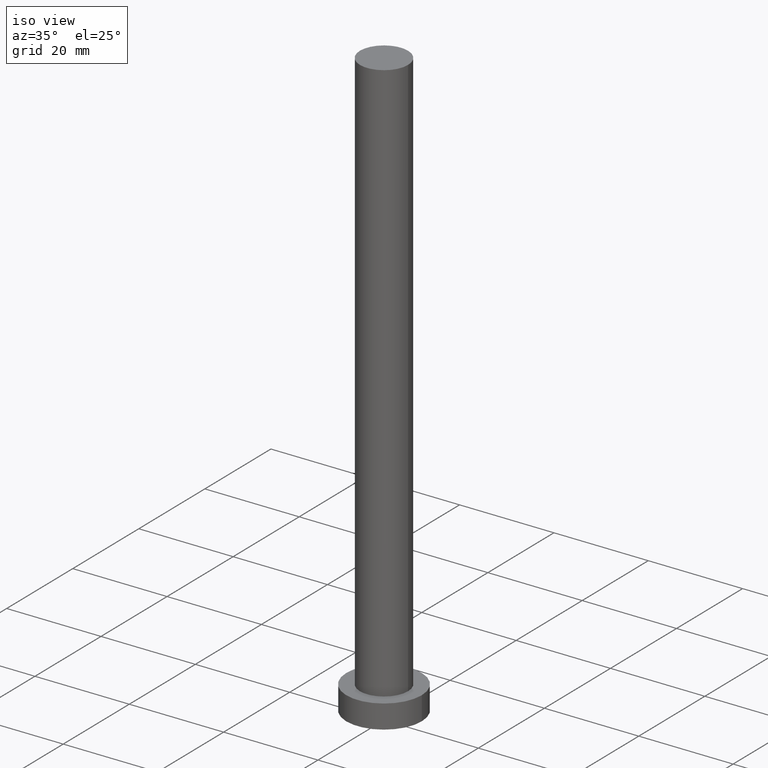
[diagram: clean part render]
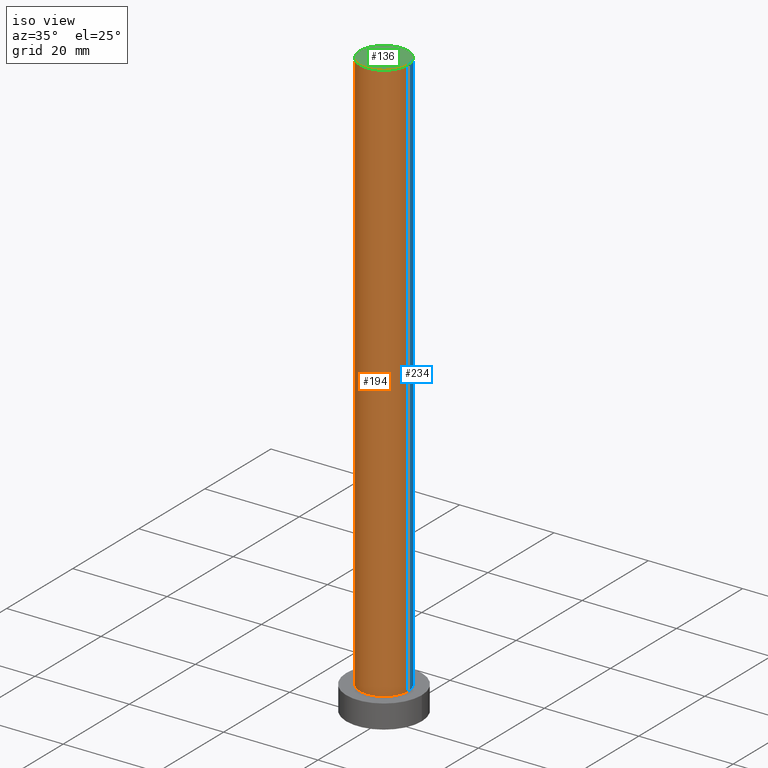
[diagram: same view with three faces highlighted in distinct colors, each labeled with its STEP entity id]
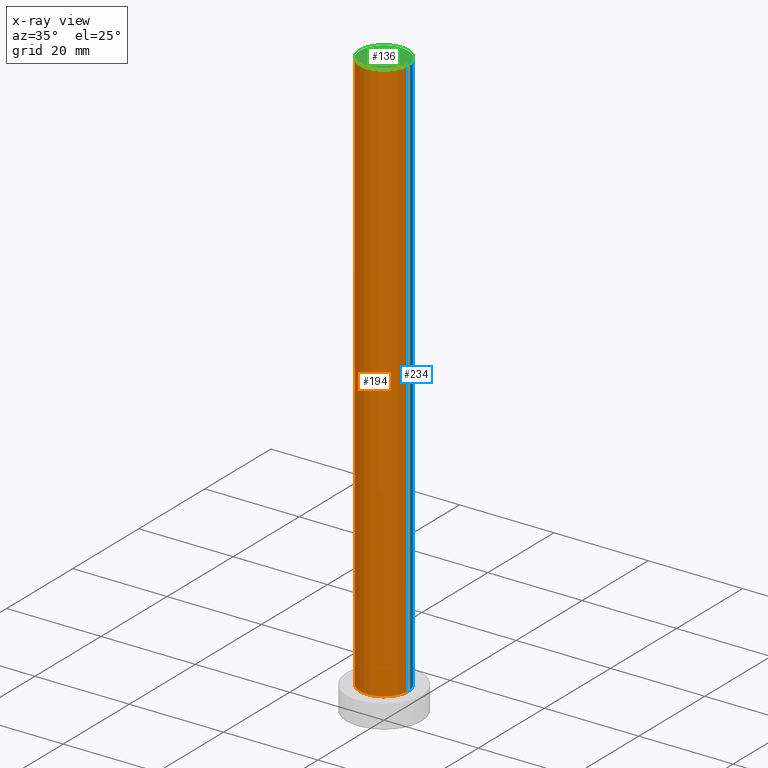
[diagram: x-ray of the same camera — body ghosted, the three highlighted faces saturated]
A machine part, iso view with three faces highlighted in distinct colors.
The next image is the same camera in x-ray (body ghosted, the three faces saturated) — at least one of them is partly hidden behind the body in this view.
Their STEP definitions:

[orange] entity #194 — the highlighted cylindrical surface (edge-blend (fillet) strip) has radius 5.1 mm, axis along (-0, -0, -1).
#2 = DIRECTION ( 'NONE',  ( -1.000000000000000000, 0.000000000000000000, 0.000000000000000000 ) ) ;
#4 = DIRECTION ( 'NONE',  ( 1.000000000000000000, 0.000000000000000000, 0.000000000000000000 ) ) ;
#12 = ORIENTED_EDGE ( 'NONE', *, *, #64, .T. ) ;
#19 = DIRECTION ( 'NONE',  ( 1.000000000000000000, 0.000000000000000000, 0.000000000000000000 ) ) ;
#20 = DIRECTION ( 'NONE',  ( -0.000000000000000000, -0.000000000000000000, -1.000000000000000000 ) ) ;
#23 = CARTESIAN_POINT ( 'NONE',  ( -5.100000000000001421, 0.000000000000000000, 125.0000000000000000 ) ) ;
#25 = EDGE_CURVE ( 'NONE', #35, #249, #198, .T. ) ;
#33 = ORIENTED_EDGE ( 'NONE', *, *, #25, .T. ) ;
#35 = VERTEX_POINT ( 'NONE', #81 ) ;
#49 = AXIS2_PLACEMENT_3D ( 'NONE', #99, #179, #2 ) ;
#64 = EDGE_CURVE ( 'NONE', #249, #190, #83, .T. ) ;
#76 = CARTESIAN_POINT ( 'NONE',  ( 0.000000000000000000, 0.000000000000000000, 125.0000000000000000 ) ) ;
#81 = CARTESIAN_POINT ( 'NONE',  ( -5.100000000000001421, 0.000000000000000000, 125.0000000000000000 ) ) ;
#83 = CIRCLE ( 'NONE', #199, 5.100000000000001421 ) ;
#95 = EDGE_LOOP ( 'NONE', ( #219, #213, #33, #12 ) ) ;
#99 = CARTESIAN_POINT ( 'NONE',  ( 0.000000000000000000, 0.000000000000000000, 125.0000000000000000 ) ) ;
#102 = CARTESIAN_POINT ( 'NONE',  ( -5.100000000000001421, 0.000000000000000000, 5.000000000000000000 ) ) ;
#104 = CIRCLE ( 'NONE', #248, 5.100000000000001421 ) ;
#120 = CARTESIAN_POINT ( 'NONE',  ( 5.100000000000001421, 6.245698675651502811E-16, 5.000000000000000000 ) ) ;
#121 = EDGE_CURVE ( 'NONE', #149, #190, #140, .T. ) ;
#128 = EDGE_CURVE ( 'NONE', #35, #149, #104, .T. ) ;
#134 = DIRECTION ( 'NONE',  ( 0.000000000000000000, 0.000000000000000000, 1.000000000000000000 ) ) ;
#140 = LINE ( 'NONE', #240, #221 ) ;
#149 = VERTEX_POINT ( 'NONE', #177 ) ;
#177 = CARTESIAN_POINT ( 'NONE',  ( 5.100000000000001421, 6.245698675651502811E-16, 125.0000000000000000 ) ) ;
#179 = DIRECTION ( 'NONE',  ( -0.000000000000000000, -0.000000000000000000, -1.000000000000000000 ) ) ;
#180 = DIRECTION ( 'NONE',  ( 0.000000000000000000, 0.000000000000000000, 1.000000000000000000 ) ) ;
#190 = VERTEX_POINT ( 'NONE', #120 ) ;
#194 = ADVANCED_FACE ( 'NONE', ( #224 ), #204, .T. ) ;
#198 = LINE ( 'NONE', #23, #205 ) ;
#199 = AXIS2_PLACEMENT_3D ( 'NONE', #237, #180, #4 ) ;
#204 = CYLINDRICAL_SURFACE ( 'NONE', #49, 5.100000000000001421 ) ;
#205 = VECTOR ( 'NONE', #20, 1000.000000000000000 ) ;
#213 = ORIENTED_EDGE ( 'NONE', *, *, #128, .F. ) ;
#219 = ORIENTED_EDGE ( 'NONE', *, *, #121, .F. ) ;
#221 = VECTOR ( 'NONE', #225, 1000.000000000000000 ) ;
#224 = FACE_OUTER_BOUND ( 'NONE', #95, .T. ) ;
#225 = DIRECTION ( 'NONE',  ( -0.000000000000000000, -0.000000000000000000, -1.000000000000000000 ) ) ;
#237 = CARTESIAN_POINT ( 'NONE',  ( 0.000000000000000000, 0.000000000000000000, 5.000000000000000000 ) ) ;
#240 = CARTESIAN_POINT ( 'NONE',  ( 5.100000000000001421, 6.245698675651502811E-16, 125.0000000000000000 ) ) ;
#248 = AXIS2_PLACEMENT_3D ( 'NONE', #76, #134, #19 ) ;
#249 = VERTEX_POINT ( 'NONE', #102 ) ;

[blue] entity #234 — the highlighted cylindrical surface (edge-blend (fillet) strip) has radius 5.1 mm, axis along (-0, -0, -1).
#17 = AXIS2_PLACEMENT_3D ( 'NONE', #154, #122, #236 ) ;
#20 = DIRECTION ( 'NONE',  ( -0.000000000000000000, -0.000000000000000000, -1.000000000000000000 ) ) ;
#23 = CARTESIAN_POINT ( 'NONE',  ( -5.100000000000001421, 0.000000000000000000, 125.0000000000000000 ) ) ;
#25 = EDGE_CURVE ( 'NONE', #35, #249, #198, .T. ) ;
#31 = CIRCLE ( 'NONE', #61, 5.100000000000001421 ) ;
#35 = VERTEX_POINT ( 'NONE', #81 ) ;
#43 = EDGE_CURVE ( 'NONE', #190, #249, #31, .T. ) ;
#46 = AXIS2_PLACEMENT_3D ( 'NONE', #142, #160, #226 ) ;
#50 = ORIENTED_EDGE ( 'NONE', *, *, #71, .F. ) ;
#61 = AXIS2_PLACEMENT_3D ( 'NONE', #98, #152, #239 ) ;
#71 = EDGE_CURVE ( 'NONE', #149, #35, #238, .T. ) ;
#81 = CARTESIAN_POINT ( 'NONE',  ( -5.100000000000001421, 0.000000000000000000, 125.0000000000000000 ) ) ;
#98 = CARTESIAN_POINT ( 'NONE',  ( 0.000000000000000000, 0.000000000000000000, 5.000000000000000000 ) ) ;
#102 = CARTESIAN_POINT ( 'NONE',  ( -5.100000000000001421, 0.000000000000000000, 5.000000000000000000 ) ) ;
#113 = ORIENTED_EDGE ( 'NONE', *, *, #25, .F. ) ;
#120 = CARTESIAN_POINT ( 'NONE',  ( 5.100000000000001421, 6.245698675651502811E-16, 5.000000000000000000 ) ) ;
#121 = EDGE_CURVE ( 'NONE', #149, #190, #140, .T. ) ;
#122 = DIRECTION ( 'NONE',  ( 0.000000000000000000, 0.000000000000000000, 1.000000000000000000 ) ) ;
#131 = ORIENTED_EDGE ( 'NONE', *, *, #121, .T. ) ;
#140 = LINE ( 'NONE', #240, #221 ) ;
#142 = CARTESIAN_POINT ( 'NONE',  ( 0.000000000000000000, 0.000000000000000000, 125.0000000000000000 ) ) ;
#143 = FACE_OUTER_BOUND ( 'NONE', #171, .T. ) ;
#148 = ORIENTED_EDGE ( 'NONE', *, *, #43, .T. ) ;
#149 = VERTEX_POINT ( 'NONE', #177 ) ;
#152 = DIRECTION ( 'NONE',  ( 0.000000000000000000, 0.000000000000000000, 1.000000000000000000 ) ) ;
#154 = CARTESIAN_POINT ( 'NONE',  ( 0.000000000000000000, 0.000000000000000000, 125.0000000000000000 ) ) ;
#160 = DIRECTION ( 'NONE',  ( -0.000000000000000000, -0.000000000000000000, -1.000000000000000000 ) ) ;
#171 = EDGE_LOOP ( 'NONE', ( #50, #131, #148, #113 ) ) ;
#177 = CARTESIAN_POINT ( 'NONE',  ( 5.100000000000001421, 6.245698675651502811E-16, 125.0000000000000000 ) ) ;
#182 = CYLINDRICAL_SURFACE ( 'NONE', #46, 5.100000000000001421 ) ;
#190 = VERTEX_POINT ( 'NONE', #120 ) ;
#198 = LINE ( 'NONE', #23, #205 ) ;
#205 = VECTOR ( 'NONE', #20, 1000.000000000000000 ) ;
#221 = VECTOR ( 'NONE', #225, 1000.000000000000000 ) ;
#225 = DIRECTION ( 'NONE',  ( -0.000000000000000000, -0.000000000000000000, -1.000000000000000000 ) ) ;
#226 = DIRECTION ( 'NONE',  ( -1.000000000000000000, 0.000000000000000000, 0.000000000000000000 ) ) ;
#234 = ADVANCED_FACE ( 'NONE', ( #143 ), #182, .T. ) ;
#236 = DIRECTION ( 'NONE',  ( 1.000000000000000000, 0.000000000000000000, 0.000000000000000000 ) ) ;
#238 = CIRCLE ( 'NONE', #17, 5.100000000000001421 ) ;
#239 = DIRECTION ( 'NONE',  ( 1.000000000000000000, 0.000000000000000000, 0.000000000000000000 ) ) ;
#240 = CARTESIAN_POINT ( 'NONE',  ( 5.100000000000001421, 6.245698675651502811E-16, 125.0000000000000000 ) ) ;
#249 = VERTEX_POINT ( 'NONE', #102 ) ;

[green] entity #136 — the highlighted planar face has unit normal (0, 0, 1).
#11 = AXIS2_PLACEMENT_3D ( 'NONE', #78, #220, #203 ) ;
#17 = AXIS2_PLACEMENT_3D ( 'NONE', #154, #122, #236 ) ;
#19 = DIRECTION ( 'NONE',  ( 1.000000000000000000, 0.000000000000000000, 0.000000000000000000 ) ) ;
#35 = VERTEX_POINT ( 'NONE', #81 ) ;
#71 = EDGE_CURVE ( 'NONE', #149, #35, #238, .T. ) ;
#75 = ORIENTED_EDGE ( 'NONE', *, *, #71, .T. ) ;
#76 = CARTESIAN_POINT ( 'NONE',  ( 0.000000000000000000, 0.000000000000000000, 125.0000000000000000 ) ) ;
#78 = CARTESIAN_POINT ( 'NONE',  ( 0.000000000000000000, 0.000000000000000000, 125.0000000000000000 ) ) ;
#81 = CARTESIAN_POINT ( 'NONE',  ( -5.100000000000001421, 0.000000000000000000, 125.0000000000000000 ) ) ;
#104 = CIRCLE ( 'NONE', #248, 5.100000000000001421 ) ;
#118 = FACE_OUTER_BOUND ( 'NONE', #216, .T. ) ;
#122 = DIRECTION ( 'NONE',  ( 0.000000000000000000, 0.000000000000000000, 1.000000000000000000 ) ) ;
#128 = EDGE_CURVE ( 'NONE', #35, #149, #104, .T. ) ;
#134 = DIRECTION ( 'NONE',  ( 0.000000000000000000, 0.000000000000000000, 1.000000000000000000 ) ) ;
#136 = ADVANCED_FACE ( 'NONE', ( #118 ), #178, .T. ) ;
#149 = VERTEX_POINT ( 'NONE', #177 ) ;
#154 = CARTESIAN_POINT ( 'NONE',  ( 0.000000000000000000, 0.000000000000000000, 125.0000000000000000 ) ) ;
#177 = CARTESIAN_POINT ( 'NONE',  ( 5.100000000000001421, 6.245698675651502811E-16, 125.0000000000000000 ) ) ;
#178 = PLANE ( 'NONE',  #11 ) ;
#196 = ORIENTED_EDGE ( 'NONE', *, *, #128, .T. ) ;
#203 = DIRECTION ( 'NONE',  ( 1.000000000000000000, 0.000000000000000000, -0.000000000000000000 ) ) ;
#216 = EDGE_LOOP ( 'NONE', ( #196, #75 ) ) ;
#220 = DIRECTION ( 'NONE',  ( 0.000000000000000000, 0.000000000000000000, 1.000000000000000000 ) ) ;
#236 = DIRECTION ( 'NONE',  ( 1.000000000000000000, 0.000000000000000000, 0.000000000000000000 ) ) ;
#238 = CIRCLE ( 'NONE', #17, 5.100000000000001421 ) ;
#248 = AXIS2_PLACEMENT_3D ( 'NONE', #76, #134, #19 ) ;